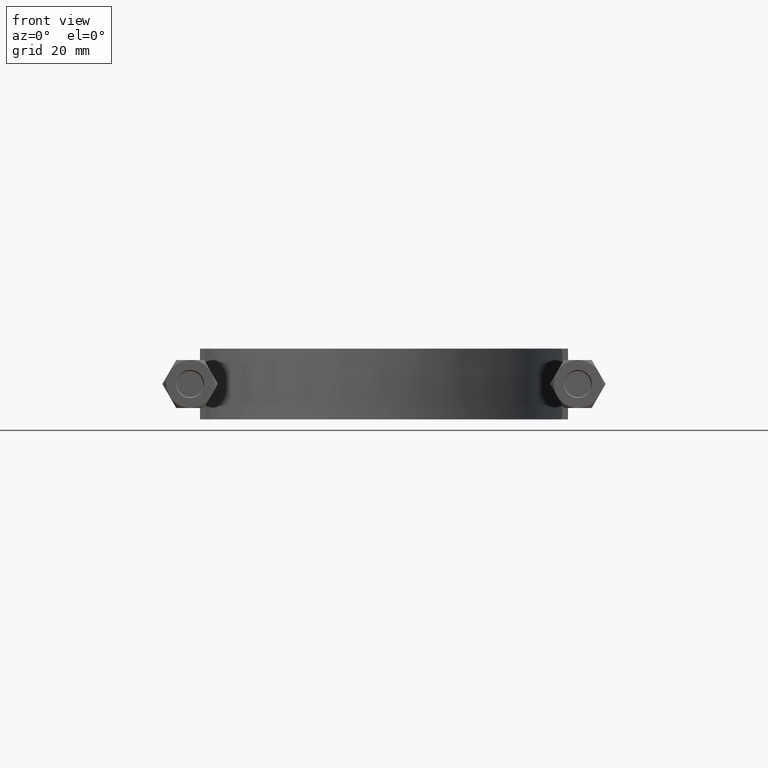
[diagram: clean part render]
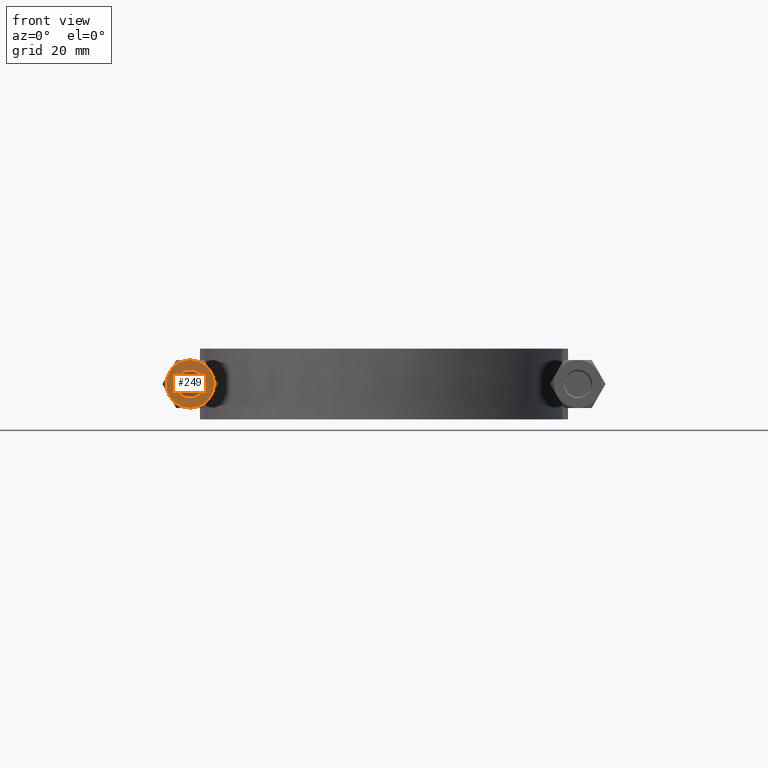
[diagram: same view with one face highlighted and labeled with its STEP entity id]
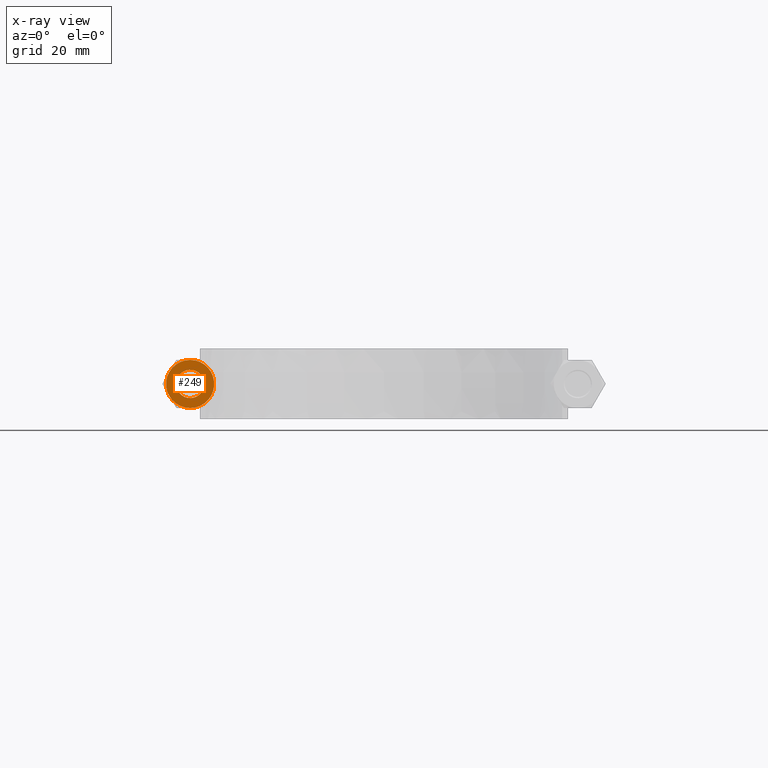
[diagram: x-ray of the same camera — body ghosted, the highlighted face saturated]
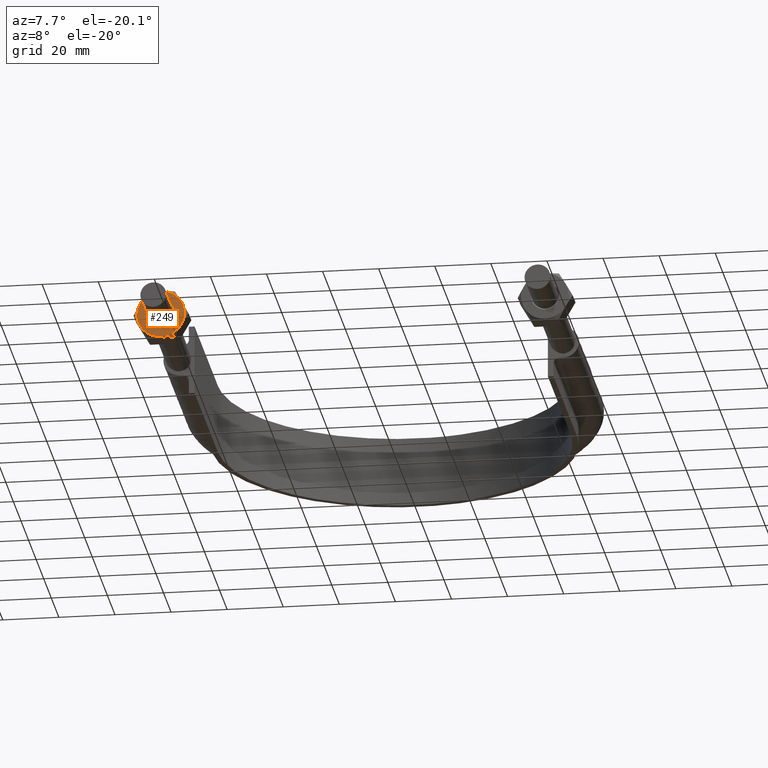
[diagram: same view with one face highlighted and labeled with its STEP entity id]
A machine part, front view. The second image highlights one B-rep face of the part: STEP entity #249.
The next image is the same camera in x-ray: the body ghosted, the highlighted face saturated — about 0% of this face is hidden behind the body in this view.
A second angle (auxiliary view) of the same face is appended — the face is thin or edge-on in the first view.
In plain terms, the highlighted planar face has unit normal (0, 1, 0).
Its self-contained STEP definition (entity closure, byte-faithful):
#249 = ADVANCED_FACE( '', ( #362, #363 ), #364, .F. );
#362 = FACE_OUTER_BOUND( '', #1184, .T. );
#363 = FACE_BOUND( '', #1185, .T. );
#364 = PLANE( '', #1186 );
#1184 = EDGE_LOOP( '', ( #1478, #1479, #1480, #1481, #1482, #1483 ) );
#1185 = EDGE_LOOP( '', ( #1484 ) );
#1186 = AXIS2_PLACEMENT_3D( '', #1485, #1486, #1487 );
#1478 = ORIENTED_EDGE( '', *, *, #1867, .F. );
#1479 = ORIENTED_EDGE( '', *, *, #1868, .F. );
#1480 = ORIENTED_EDGE( '', *, *, #1869, .F. );
#1481 = ORIENTED_EDGE( '', *, *, #1870, .F. );
#1482 = ORIENTED_EDGE( '', *, *, #1865, .F. );
#1483 = ORIENTED_EDGE( '', *, *, #1871, .F. );
#1484 = ORIENTED_EDGE( '', *, *, #1872, .T. );
#1485 = CARTESIAN_POINT( '', ( -68.5000000000000, 20.0000000000000, 3.60204487764859E-015 ) );
#1486 = DIRECTION( '', ( 1.22460635382238E-016, 1.00000000000000, 1.83690953073357E-016 ) );
#1487 = DIRECTION( '', ( -0.866025403784439, 1.42085446679230E-017, 0.500000000000000 ) );
#1865 = EDGE_CURVE( '', #2044, #2046, #2047, .T. );
#1867 = EDGE_CURVE( '', #2049, #2050, #2051, .T. );
#1868 = EDGE_CURVE( '', #2052, #2049, #2053, .T. );
#1869 = EDGE_CURVE( '', #2054, #2052, #2055, .T. );
#1870 = EDGE_CURVE( '', #2046, #2054, #2056, .T. );
#1871 = EDGE_CURVE( '', #2050, #2044, #2057, .T. );
#1872 = EDGE_CURVE( '', #2058, #2058, #2059, .T. );
#2044 = VERTEX_POINT( '', #2530 );
#2046 = VERTEX_POINT( '', #2537 );
#2047 = CIRCLE( '', #2538, 8.50000000000000 );
#2049 = VERTEX_POINT( '', #2547 );
#2050 = VERTEX_POINT( '', #2548 );
#2051 = CIRCLE( '', #2549, 8.50000000000000 );
#2052 = VERTEX_POINT( '', #2550 );
#2053 = CIRCLE( '', #2551, 8.50000000000000 );
#2054 = VERTEX_POINT( '', #2552 );
#2055 = CIRCLE( '', #2553, 8.50000000000000 );
#2056 = CIRCLE( '', #2554, 8.50000000000000 );
#2057 = CIRCLE( '', #2555, 8.50000000000000 );
#2058 = VERTEX_POINT( '', #2556 );
#2059 = CIRCLE( '', #2557, 5.00000000000000 );
#2530 = CARTESIAN_POINT( '', ( -61.1387840678323, 20.0000000000000, -4.24999999999999 ) );
#2537 = CARTESIAN_POINT( '', ( -68.5000000000000, 20.0000000000000, -8.49999999999999 ) );
#2538 = AXIS2_PLACEMENT_3D( '', #2940, #2941, #2942 );
#2547 = CARTESIAN_POINT( '', ( -68.5000000000000, 20.0000000000000, 8.50000000000000 ) );
#2548 = CARTESIAN_POINT( '', ( -61.1387840678323, 20.0000000000000, 4.25000000000000 ) );
#2549 = AXIS2_PLACEMENT_3D( '', #2943, #2944, #2945 );
#2550 = CARTESIAN_POINT( '', ( -75.8612159321678, 20.0000000000000, 4.25000000000000 ) );
#2551 = AXIS2_PLACEMENT_3D( '', #2946, #2947, #2948 );
#2552 = CARTESIAN_POINT( '', ( -75.8612159321678, 20.0000000000000, -4.25000000000000 ) );
#2553 = AXIS2_PLACEMENT_3D( '', #2949, #2950, #2951 );
#2554 = AXIS2_PLACEMENT_3D( '', #2952, #2953, #2954 );
#2555 = AXIS2_PLACEMENT_3D( '', #2955, #2956, #2957 );
#2556 = CARTESIAN_POINT( '', ( -72.8301270189222, 20.0000000000000, 2.50000000000000 ) );
#2557 = AXIS2_PLACEMENT_3D( '', #2958, #2959, #2960 );
#2940 = CARTESIAN_POINT( '', ( -68.5000000000000, 20.0000000000000, 3.60204487764859E-015 ) );
#2941 = DIRECTION( '', ( 1.22460635382238E-016, 1.00000000000000, 1.83690953073357E-016 ) );
#2942 = DIRECTION( '', ( -0.866025403784439, 1.42085446679230E-017, 0.500000000000000 ) );
#2943 = CARTESIAN_POINT( '', ( -68.5000000000000, 20.0000000000000, 3.60204487764859E-015 ) );
#2944 = DIRECTION( '', ( 1.22460635382238E-016, 1.00000000000000, 1.83690953073357E-016 ) );
#2945 = DIRECTION( '', ( -0.866025403784439, 1.42085446679230E-017, 0.500000000000000 ) );
#2946 = CARTESIAN_POINT( '', ( -68.5000000000000, 20.0000000000000, 3.60204487764859E-015 ) );
#2947 = DIRECTION( '', ( 1.22460635382238E-016, 1.00000000000000, 1.83690953073357E-016 ) );
#2948 = DIRECTION( '', ( -0.866025403784439, 1.42085446679230E-017, 0.500000000000000 ) );
#2949 = CARTESIAN_POINT( '', ( -68.5000000000000, 20.0000000000000, 3.60204487764859E-015 ) );
#2950 = DIRECTION( '', ( 1.22460635382238E-016, 1.00000000000000, 1.83690953073357E-016 ) );
#2951 = DIRECTION( '', ( -0.866025403784439, 1.42085446679230E-017, 0.500000000000000 ) );
#2952 = CARTESIAN_POINT( '', ( -68.5000000000000, 20.0000000000000, 3.60204487764859E-015 ) );
#2953 = DIRECTION( '', ( 1.22460635382238E-016, 1.00000000000000, 1.83690953073357E-016 ) );
#2954 = DIRECTION( '', ( -0.866025403784439, 1.42085446679230E-017, 0.500000000000000 ) );
#2955 = CARTESIAN_POINT( '', ( -68.5000000000000, 20.0000000000000, 3.60204487764859E-015 ) );
#2956 = DIRECTION( '', ( 1.22460635382238E-016, 1.00000000000000, 1.83690953073357E-016 ) );
#2957 = DIRECTION( '', ( -0.866025403784439, 1.42085446679230E-017, 0.500000000000000 ) );
#2958 = CARTESIAN_POINT( '', ( -68.5000000000000, 20.0000000000000, 3.60204487764859E-015 ) );
#2959 = DIRECTION( '', ( 1.22460635382238E-016, 1.00000000000000, 1.83690953073357E-016 ) );
#2960 = DIRECTION( '', ( -0.866025403784439, 1.42085446679230E-017, 0.500000000000000 ) );